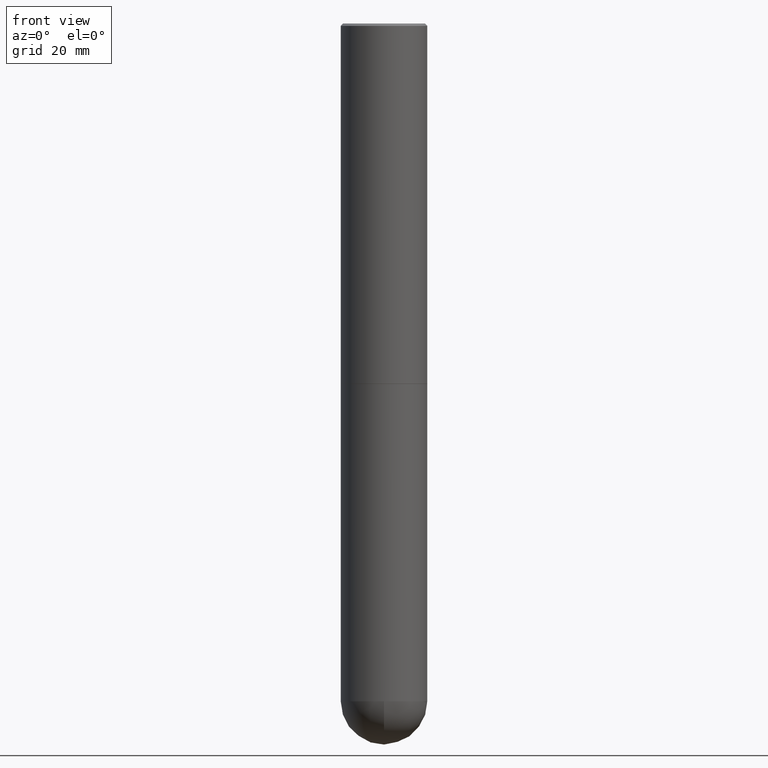
[diagram: clean part render]
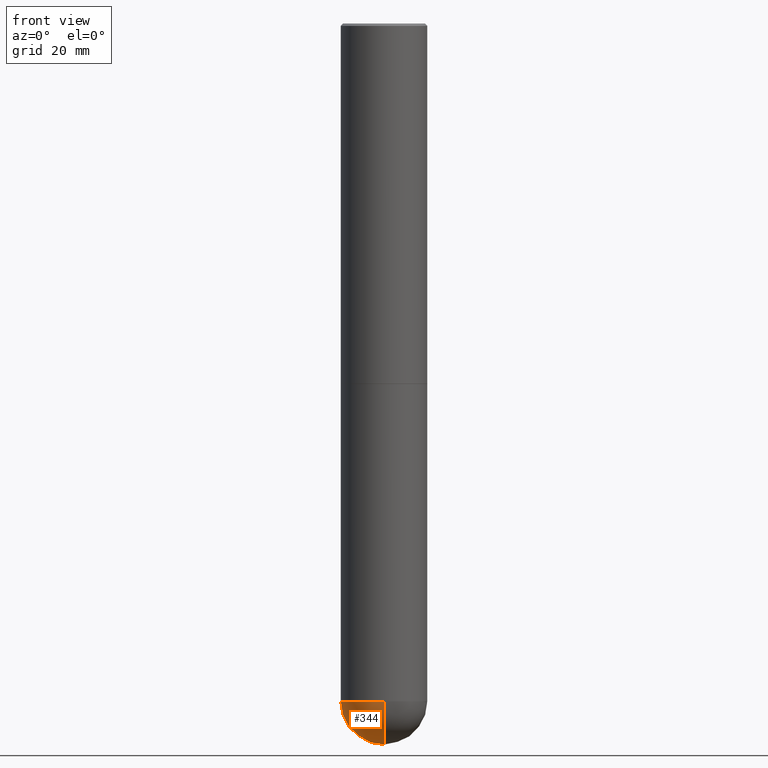
[diagram: same view with one face highlighted and labeled with its STEP entity id]
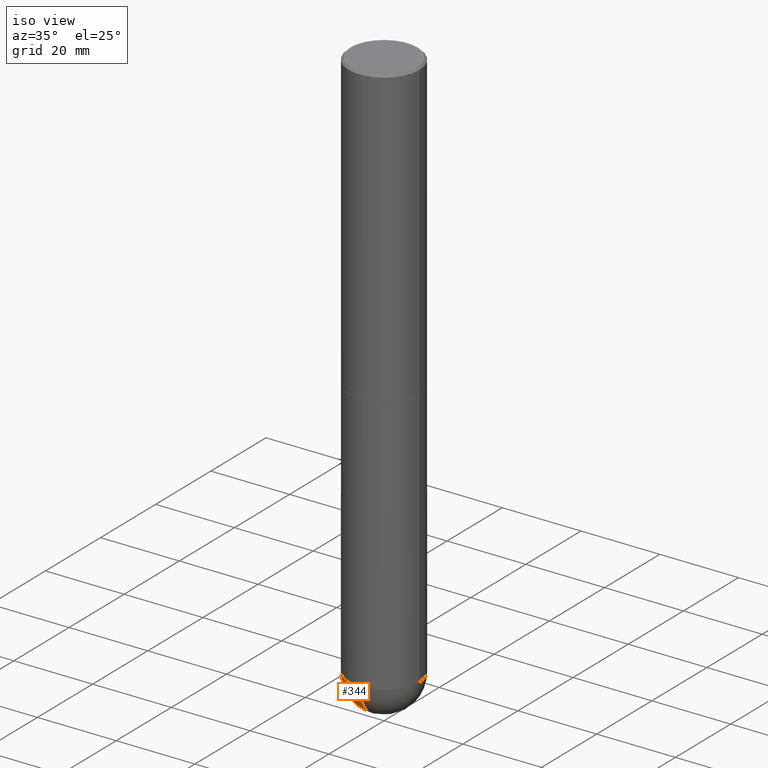
[diagram: same view with one face highlighted and labeled with its STEP entity id]
A machine part, front view. The second image highlights one B-rep face of the part: STEP entity #344.
A second angle (iso view) of the same face is appended — the face is thin or edge-on in the first view.
In plain terms, the highlighted spherical surface has radius 9.0005 mm.
Its self-contained STEP definition (entity closure, byte-faithful):
#20 = DIRECTION ( 'NONE',  ( -2.445468806185136597E-29, 3.491481338843145583E-15, 1.000000000000000000 ) ) ;
#24 = CIRCLE ( 'NONE', #324, 0.3543500000000002204 ) ;
#47 = EDGE_CURVE ( 'NONE', #97, #356, #24, .T. ) ;
#60 = CARTESIAN_POINT ( 'NONE',  ( -2.517808184165781285E-15, -0.3543500000000196493, -5.551149999999998919 ) ) ;
#68 = AXIS2_PLACEMENT_3D ( 'NONE', #382, #250, #313 ) ;
#70 = EDGE_CURVE ( 'NONE', #97, #392, #411, .T. ) ;
#83 = DIRECTION ( 'NONE',  ( -7.105427357601001070E-15, -1.000000000000000000, 0.000000000000000000 ) ) ;
#97 = VERTEX_POINT ( 'NONE', #317 ) ;
#101 = ORIENTED_EDGE ( 'NONE', *, *, #299, .F. ) ;
#107 = ORIENTED_EDGE ( 'NONE', *, *, #47, .T. ) ;
#108 = CIRCLE ( 'NONE', #351, 0.3543499999999999428 ) ;
#113 = CARTESIAN_POINT ( 'NONE',  ( 1.324404438554073486E-28, -1.985591900225917417E-14, -5.551149999999999807 ) ) ;
#117 = CARTESIAN_POINT ( 'NONE',  ( -0.3543499999999999428, -1.232770860749472642E-14, -5.551149999999999807 ) ) ;
#140 = EDGE_CURVE ( 'NONE', #392, #348, #316, .T. ) ;
#150 = DIRECTION ( 'NONE',  ( 6.982962677686265922E-15, 1.000000000000000000, -3.083784951222533328E-15 ) ) ;
#151 = CARTESIAN_POINT ( 'NONE',  ( 1.324404438554073486E-28, -1.985591900225917417E-14, -5.551149999999999807 ) ) ;
#156 = DIRECTION ( 'NONE',  ( -1.000000000000000000, 6.982962677686265922E-15, -4.883557194083112340E-29 ) ) ;
#194 = EDGE_LOOP ( 'NONE', ( #367, #107, #101, #201 ) ) ;
#201 = ORIENTED_EDGE ( 'NONE', *, *, #140, .F. ) ;
#240 = CARTESIAN_POINT ( 'NONE',  ( 2.474412824838263195E-15, 0.3543499999999804584, -5.551150000000000695 ) ) ;
#250 = DIRECTION ( 'NONE',  ( -2.445468806185136597E-29, 3.491481338843145583E-15, 1.000000000000000000 ) ) ;
#280 = DIRECTION ( 'NONE',  ( 6.982962677686265133E-15, 1.000000000000000000, 0.000000000000000000 ) ) ;
#299 = EDGE_CURVE ( 'NONE', #348, #356, #108, .T. ) ;
#305 = CARTESIAN_POINT ( 'NONE',  ( 1.357516416345461774E-28, -1.938173663411912545E-14, -5.551149999999999807 ) ) ;
#312 = CARTESIAN_POINT ( 'NONE',  ( 1.324404438554073486E-28, -1.985591900225917417E-14, -5.551149999999999807 ) ) ;
#313 = DIRECTION ( 'NONE',  ( 1.000000000000000000, -6.982962677686261189E-15, 0.000000000000000000 ) ) ;
#316 = CIRCLE ( 'NONE', #68, 0.3543499999999999428 ) ;
#317 = CARTESIAN_POINT ( 'NONE',  ( 1.412574766574097249E-28, -2.107142773501435227E-14, -5.905499999999999972 ) ) ;
#324 = AXIS2_PLACEMENT_3D ( 'NONE', #113, #364, #83 ) ;
#344 = ADVANCED_FACE ( 'NONE', ( #409 ), #406, .T. ) ;
#348 = VERTEX_POINT ( 'NONE', #117 ) ;
#351 = AXIS2_PLACEMENT_3D ( 'NONE', #305, #20, #404 ) ;
#356 = VERTEX_POINT ( 'NONE', #60 ) ;
#364 = DIRECTION ( 'NONE',  ( -1.000000000000000000, 7.105427357601001070E-15, -4.926315508542082329E-29 ) ) ;
#367 = ORIENTED_EDGE ( 'NONE', *, *, #70, .F. ) ;
#382 = CARTESIAN_POINT ( 'NONE',  ( 1.357516416345461774E-28, -1.938173663411912545E-14, -5.551149999999999807 ) ) ;
#388 = AXIS2_PLACEMENT_3D ( 'NONE', #151, #391, #280 ) ;
#391 = DIRECTION ( 'NONE',  ( 1.000000000000000000, -6.982962677686265922E-15, 4.883557194083112340E-29 ) ) ;
#392 = VERTEX_POINT ( 'NONE', #240 ) ;
#404 = DIRECTION ( 'NONE',  ( 1.000000000000000000, -6.982962677686261189E-15, 0.000000000000000000 ) ) ;
#406 = SPHERICAL_SURFACE ( 'NONE', #412, 0.3543500000000002204 ) ;
#409 = FACE_OUTER_BOUND ( 'NONE', #194, .T. ) ;
#411 = CIRCLE ( 'NONE', #388, 0.3543500000000002204 ) ;
#412 = AXIS2_PLACEMENT_3D ( 'NONE', #312, #156, #150 ) ;